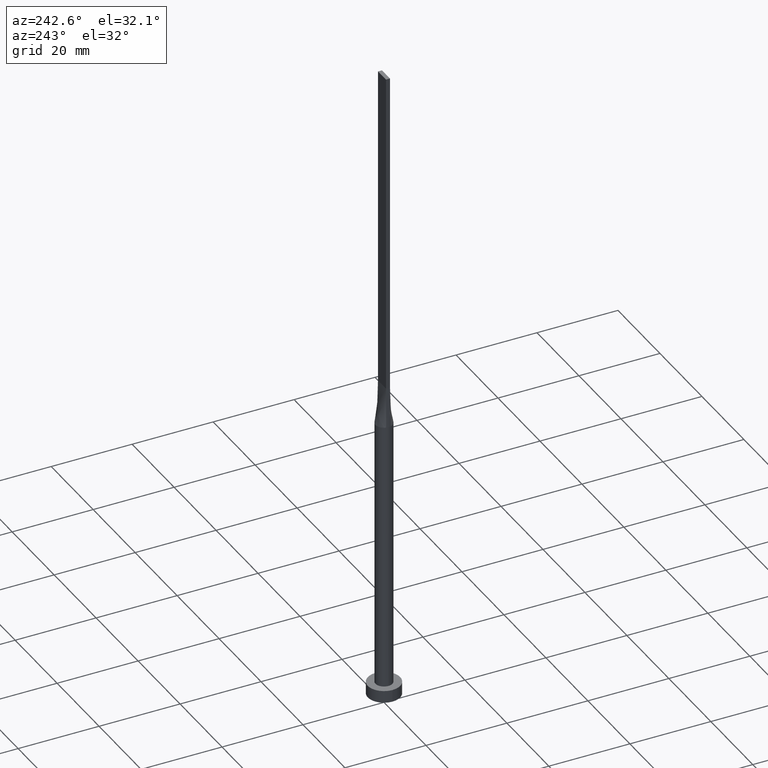
[diagram: clean part render]
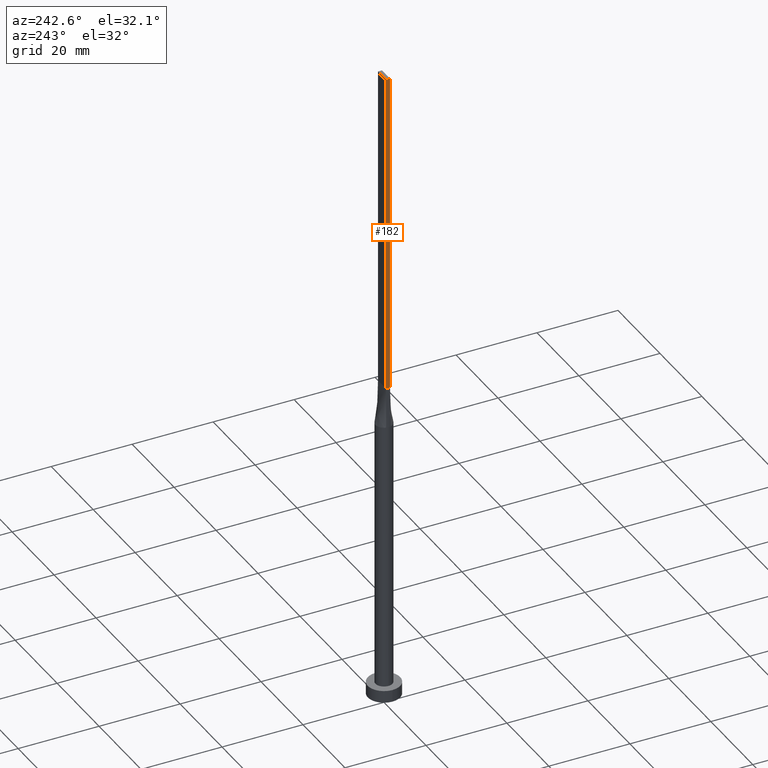
[diagram: same view with one face highlighted and labeled with its STEP entity id]
A machine part, auxiliary view. The second image highlights one B-rep face of the part: STEP entity #182.
In plain terms, the highlighted planar face has unit normal (1, -0, 0).
Its self-contained STEP definition (entity closure, byte-faithful):
#11 = CARTESIAN_POINT ( 'NONE',  ( -1.899999999999999911, -0.4999999999999995559, 80.00000000000000000 ) ) ;
#19 = DIRECTION ( 'NONE',  ( -0.000000000000000000, -0.000000000000000000, -1.000000000000000000 ) ) ;
#29 = DIRECTION ( 'NONE',  ( 1.000000000000000000, -2.168404344971009361E-16, 0.000000000000000000 ) ) ;
#51 = VERTEX_POINT ( 'NONE', #11 ) ;
#57 = LINE ( 'NONE', #456, #227 ) ;
#66 = DIRECTION ( 'NONE',  ( 2.168404344971009361E-16, 1.000000000000000000, 0.000000000000000000 ) ) ;
#111 = VERTEX_POINT ( 'NONE', #266 ) ;
#123 = DIRECTION ( 'NONE',  ( -2.168404344971009361E-16, -1.000000000000000000, 0.000000000000000000 ) ) ;
#137 = CARTESIAN_POINT ( 'NONE',  ( -1.899999999999999689, 0.5000000000000002220, 80.00000000000000000 ) ) ;
#140 = ORIENTED_EDGE ( 'NONE', *, *, #364, .T. ) ;
#165 = ORIENTED_EDGE ( 'NONE', *, *, #258, .F. ) ;
#178 = LINE ( 'NONE', #137, #230 ) ;
#182 = ADVANCED_FACE ( 'NONE', ( #334 ), #474, .F. ) ;
#227 = VECTOR ( 'NONE', #544, 1000.000000000000000 ) ;
#230 = VECTOR ( 'NONE', #123, 1000.000000000000000 ) ;
#233 = CARTESIAN_POINT ( 'NONE',  ( -1.899999999999999911, -0.4999999999999995559, 160.0000000000000000 ) ) ;
#248 = AXIS2_PLACEMENT_3D ( 'NONE', #518, #29, #66 ) ;
#250 = EDGE_CURVE ( 'NONE', #309, #481, #359, .T. ) ;
#258 = EDGE_CURVE ( 'NONE', #481, #51, #57, .T. ) ;
#266 = CARTESIAN_POINT ( 'NONE',  ( -1.899999999999999689, 0.5000000000000002220, 80.00000000000000000 ) ) ;
#285 = EDGE_CURVE ( 'NONE', #111, #51, #178, .T. ) ;
#286 = LINE ( 'NONE', #554, #540 ) ;
#305 = CARTESIAN_POINT ( 'NONE',  ( -1.899999999999999689, 0.5000000000000002220, 160.0000000000000000 ) ) ;
#309 = VERTEX_POINT ( 'NONE', #414 ) ;
#334 = FACE_OUTER_BOUND ( 'NONE', #467, .T. ) ;
#344 = DIRECTION ( 'NONE',  ( -2.168404344971009361E-16, -1.000000000000000000, 0.000000000000000000 ) ) ;
#359 = LINE ( 'NONE', #305, #494 ) ;
#364 = EDGE_CURVE ( 'NONE', #309, #111, #286, .T. ) ;
#384 = ORIENTED_EDGE ( 'NONE', *, *, #285, .T. ) ;
#414 = CARTESIAN_POINT ( 'NONE',  ( -1.899999999999999689, 0.5000000000000002220, 160.0000000000000000 ) ) ;
#427 = ORIENTED_EDGE ( 'NONE', *, *, #250, .F. ) ;
#456 = CARTESIAN_POINT ( 'NONE',  ( -1.899999999999999911, -0.4999999999999995559, 160.0000000000000000 ) ) ;
#467 = EDGE_LOOP ( 'NONE', ( #384, #165, #427, #140 ) ) ;
#474 = PLANE ( 'NONE',  #248 ) ;
#481 = VERTEX_POINT ( 'NONE', #233 ) ;
#494 = VECTOR ( 'NONE', #344, 1000.000000000000000 ) ;
#518 = CARTESIAN_POINT ( 'NONE',  ( -1.899999999999999689, 0.5000000000000002220, 160.0000000000000000 ) ) ;
#540 = VECTOR ( 'NONE', #19, 1000.000000000000000 ) ;
#544 = DIRECTION ( 'NONE',  ( -0.000000000000000000, -0.000000000000000000, -1.000000000000000000 ) ) ;
#554 = CARTESIAN_POINT ( 'NONE',  ( -1.899999999999999689, 0.5000000000000002220, 160.0000000000000000 ) ) ;